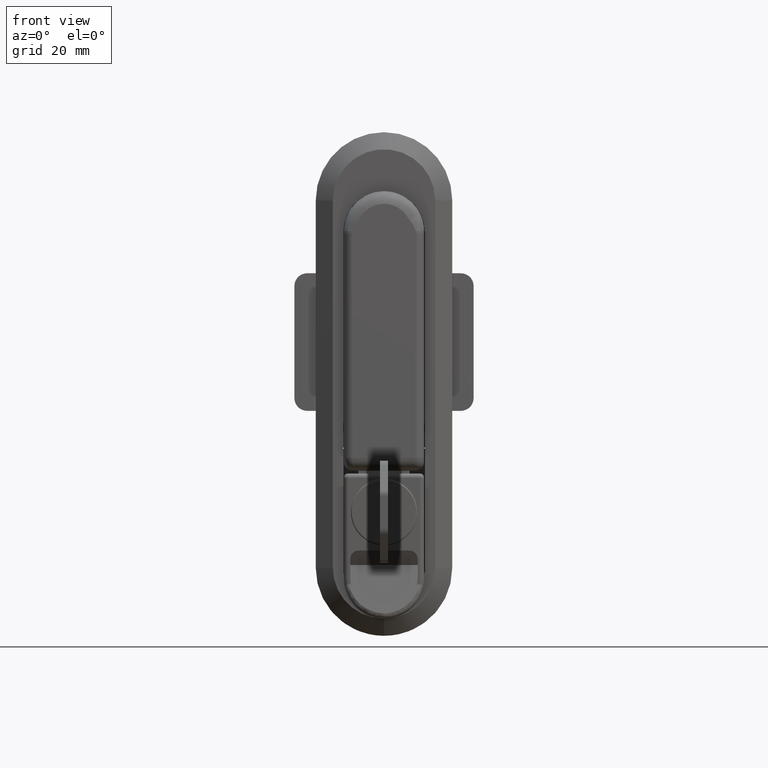
[diagram: clean part render]
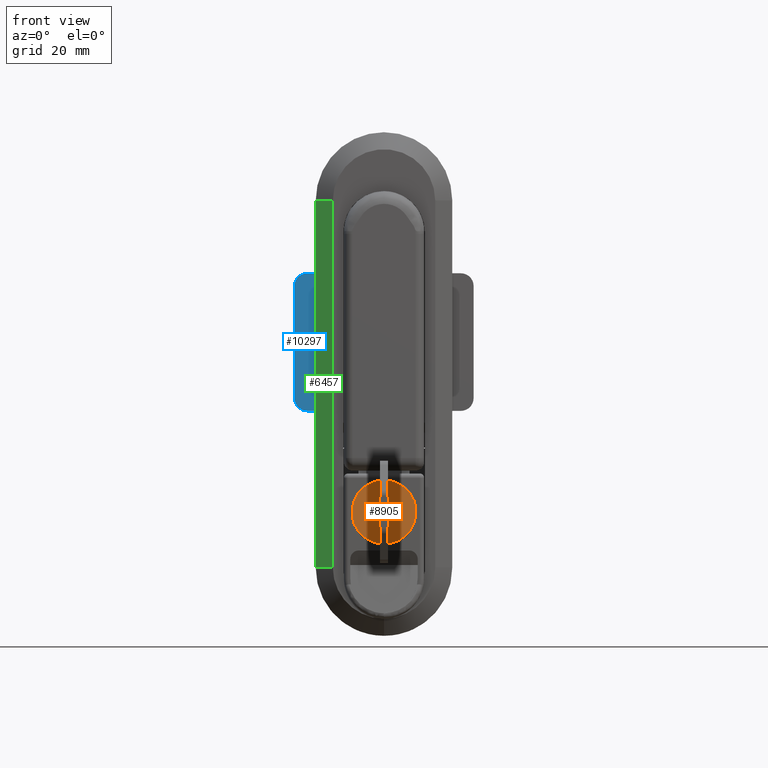
[diagram: same view with three faces highlighted in distinct colors, each labeled with its STEP entity id]
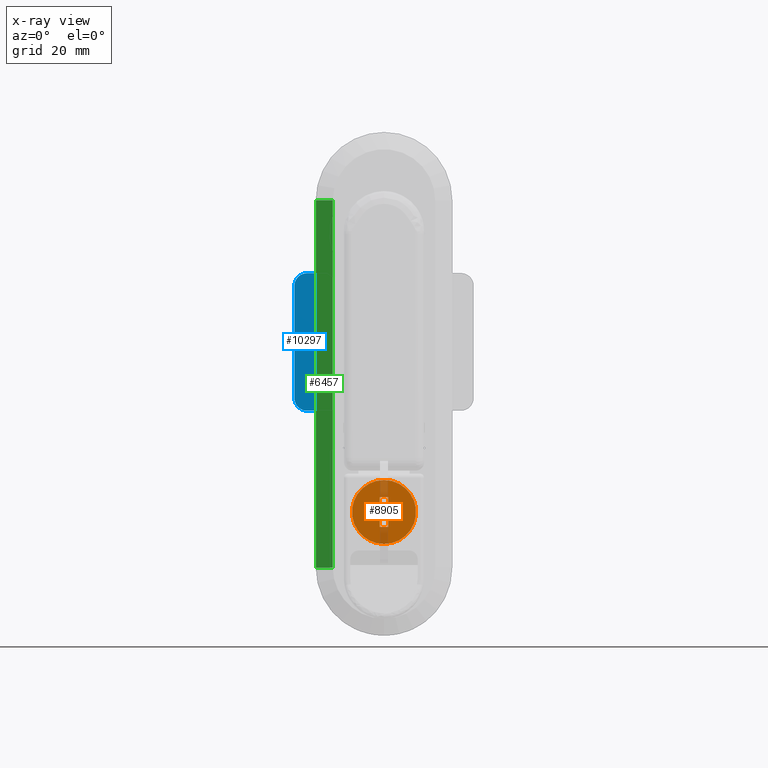
[diagram: x-ray of the same camera — body ghosted, the three highlighted faces saturated]
A machine part, front view with three faces highlighted in distinct colors.
The next image is the same camera in x-ray (body ghosted, the three faces saturated) — at least one of them is partly hidden behind the body in this view.
Their STEP definitions:

[orange] entity #8905 — the highlighted planar face has unit normal (0, 1, 0).
#2088 = CARTESIAN_POINT ( 'NONE',  ( -3.399999999999999900, 0.0000000000000000000, -72.69999999999998900 ) ) ;
#2089 = CARTESIAN_POINT ( 'NONE',  ( -3.399999999999999900, 9.368548013477254200E-016, -57.69999999999999600 ) ) ;
#2090 = DIRECTION ( 'NONE',  ( 0.0000000000000000000, 0.0000000000000000000, -1.000000000000000000 ) ) ;
#2091 = DIRECTION ( 'NONE',  ( -1.000000000000000000, 0.0000000000000000000, 0.0000000000000000000 ) ) ;
#2092 = AXIS2_PLACEMENT_3D ( 'NONE', #2098, #2091, #2090 ) ;
#2093 = CIRCLE ( 'NONE', #2092, 7.499999999999992900 ) ;
#2098 = CARTESIAN_POINT ( 'NONE',  ( -3.399999999999999900, 0.0000000000000000000, -65.19999999999998900 ) ) ;
#2594 = VECTOR ( 'NONE', #2649, 1000.000000000000000 ) ;
#2595 = CARTESIAN_POINT ( 'NONE',  ( -3.399999999999999900, 0.0000000000000000000, -61.69999999999999600 ) ) ;
#2596 = LINE ( 'NONE', #2595, #2594 ) ;
#2616 = DIRECTION ( 'NONE',  ( 0.0000000000000000000, -1.000000000000000000, 0.0000000000000000000 ) ) ;
#2617 = DIRECTION ( 'NONE',  ( 1.000000000000000000, 0.0000000000000000000, 0.0000000000000000000 ) ) ;
#2618 = CARTESIAN_POINT ( 'NONE',  ( -3.399999999999999900, 0.0000000000000000000, 0.0000000000000000000 ) ) ;
#2619 = AXIS2_PLACEMENT_3D ( 'NONE', #2618, #2617, #2616 ) ;
#2620 = PLANE ( 'NONE',  #2619 ) ;
#2622 = FACE_BOUND ( 'NONE', #8910, .T. ) ;
#2623 = FACE_OUTER_BOUND ( 'NONE', #8906, .T. ) ;
#2640 = DIRECTION ( 'NONE',  ( 0.0000000000000000000, -1.000000000000000000, 0.0000000000000000000 ) ) ;
#2641 = VECTOR ( 'NONE', #2640, 1000.000000000000000 ) ;
#2642 = CARTESIAN_POINT ( 'NONE',  ( -3.399999999999999900, 0.0000000000000000000, -68.70000000000000300 ) ) ;
#2643 = LINE ( 'NONE', #2642, #2641 ) ;
#2644 = CARTESIAN_POINT ( 'NONE',  ( -3.399999999999959900, -1.000000000000000000, -68.70000000000000300 ) ) ;
#2645 = DIRECTION ( 'NONE',  ( 0.0000000000000000000, 0.0000000000000000000, 1.000000000000000000 ) ) ;
#2646 = VECTOR ( 'NONE', #2645, 1000.000000000000000 ) ;
#2647 = CARTESIAN_POINT ( 'NONE',  ( -3.399999999999999900, -1.000000000000000000, 0.0000000000000000000 ) ) ;
#2648 = LINE ( 'NONE', #2647, #2646 ) ;
#2649 = DIRECTION ( 'NONE',  ( 0.0000000000000000000, 1.000000000000000000, 0.0000000000000000000 ) ) ;
#2670 = CARTESIAN_POINT ( 'NONE',  ( -3.399999999999959900, -1.000000000000000000, -61.69999999999999600 ) ) ;
#2671 = CARTESIAN_POINT ( 'NONE',  ( -3.399999999999999900, 1.000000000000000000, -68.70000000000000300 ) ) ;
#2672 = CARTESIAN_POINT ( 'NONE',  ( -3.399999999999959900, 1.000000000000000000, -61.69999999999999600 ) ) ;
#2673 = DIRECTION ( 'NONE',  ( 0.0000000000000000000, 0.0000000000000000000, -1.000000000000000000 ) ) ;
#2674 = VECTOR ( 'NONE', #2673, 1000.000000000000000 ) ;
#2675 = CARTESIAN_POINT ( 'NONE',  ( -3.399999999999999900, 1.000000000000000000, 0.0000000000000000000 ) ) ;
#2676 = LINE ( 'NONE', #2675, #2674 ) ;
#2677 = DIRECTION ( 'NONE',  ( 0.0000000000000000000, 0.0000000000000000000, -1.000000000000000000 ) ) ;
#2678 = DIRECTION ( 'NONE',  ( -1.000000000000000000, 0.0000000000000000000, 0.0000000000000000000 ) ) ;
#2679 = CARTESIAN_POINT ( 'NONE',  ( -3.399999999999999900, 0.0000000000000000000, -65.19999999999998900 ) ) ;
#2680 = AXIS2_PLACEMENT_3D ( 'NONE', #2679, #2678, #2677 ) ;
#2681 = CIRCLE ( 'NONE', #2680, 7.499999999999992900 ) ;
#8602 = EDGE_CURVE ( 'NONE', #8603, #8604, #2093, .T. ) ;
#8603 = VERTEX_POINT ( 'NONE', #2089 ) ;
#8604 = VERTEX_POINT ( 'NONE', #2088 ) ;
#8887 = ORIENTED_EDGE ( 'NONE', *, *, #8888, .F. ) ;
#8888 = EDGE_CURVE ( 'NONE', #8915, #8913, #2596, .T. ) ;
#8889 = ORIENTED_EDGE ( 'NONE', *, *, #8890, .F. ) ;
#8890 = EDGE_CURVE ( 'NONE', #8891, #8915, #2648, .T. ) ;
#8891 = VERTEX_POINT ( 'NONE', #2644 ) ;
#8892 = ORIENTED_EDGE ( 'NONE', *, *, #8893, .F. ) ;
#8893 = EDGE_CURVE ( 'NONE', #8914, #8891, #2643, .T. ) ;
#8905 = ADVANCED_FACE ( 'NONE', ( #2623, #2622 ), #2620, .F. ) ;
#8906 = EDGE_LOOP ( 'NONE', ( #8907, #8909 ) ) ;
#8907 = ORIENTED_EDGE ( 'NONE', *, *, #8908, .T. ) ;
#8908 = EDGE_CURVE ( 'NONE', #8604, #8603, #2681, .T. ) ;
#8909 = ORIENTED_EDGE ( 'NONE', *, *, #8602, .T. ) ;
#8910 = EDGE_LOOP ( 'NONE', ( #8911, #8887, #8889, #8892 ) ) ;
#8911 = ORIENTED_EDGE ( 'NONE', *, *, #8912, .F. ) ;
#8912 = EDGE_CURVE ( 'NONE', #8913, #8914, #2676, .T. ) ;
#8913 = VERTEX_POINT ( 'NONE', #2672 ) ;
#8914 = VERTEX_POINT ( 'NONE', #2671 ) ;
#8915 = VERTEX_POINT ( 'NONE', #2670 ) ;

[blue] entity #10297 — the highlighted planar face has unit normal (0, 1, 0).
#4950 = CARTESIAN_POINT ( 'NONE',  ( 4.999999999999920100, 21.00000000000000000, -12.25000000000000000 ) ) ;
#4951 = CARTESIAN_POINT ( 'NONE',  ( 4.999999999999920100, 21.00000000000000000, -38.50000000000000000 ) ) ;
#4952 = DIRECTION ( 'NONE',  ( 0.0000000000000000000, 0.0000000000000000000, 1.000000000000000000 ) ) ;
#4953 = VECTOR ( 'NONE', #4952, 1000.000000000000000 ) ;
#4954 = CARTESIAN_POINT ( 'NONE',  ( 4.999999999999920100, 21.00000000000000000, -1009.250000000000000 ) ) ;
#4955 = LINE ( 'NONE', #4954, #4953 ) ;
#5030 = DIRECTION ( 'NONE',  ( 0.0000000000000000000, 0.0000000000000000000, -1.000000000000000000 ) ) ;
#5031 = DIRECTION ( 'NONE',  ( -1.000000000000000000, 0.0000000000000000000, 0.0000000000000000000 ) ) ;
#5032 = CARTESIAN_POINT ( 'NONE',  ( 4.999999999999920100, 18.00000000000000000, -12.25000000000000000 ) ) ;
#5033 = AXIS2_PLACEMENT_3D ( 'NONE', #5032, #5031, #5030 ) ;
#5034 = CIRCLE ( 'NONE', #5033, 2.999999999999999100 ) ;
#5035 = DIRECTION ( 'NONE',  ( 0.0000000000000000000, 1.000000000000000000, 0.0000000000000000000 ) ) ;
#5036 = VECTOR ( 'NONE', #5035, 1000.000000000000000 ) ;
#5037 = CARTESIAN_POINT ( 'NONE',  ( 4.999999999999920100, 0.0000000000000000000, -41.50000000000000000 ) ) ;
#5038 = LINE ( 'NONE', #5037, #5036 ) ;
#5039 = CARTESIAN_POINT ( 'NONE',  ( 4.999999999999920100, 18.00000000000000000, -41.50000000000000000 ) ) ;
#5040 = DIRECTION ( 'NONE',  ( 0.0000000000000000000, 0.0000000000000000000, -1.000000000000000000 ) ) ;
#5041 = DIRECTION ( 'NONE',  ( -1.000000000000000000, 0.0000000000000000000, 0.0000000000000000000 ) ) ;
#5042 = CARTESIAN_POINT ( 'NONE',  ( 4.999999999999920100, 18.00000000000000000, -38.50000000000000000 ) ) ;
#5043 = AXIS2_PLACEMENT_3D ( 'NONE', #5042, #5041, #5040 ) ;
#5044 = CIRCLE ( 'NONE', #5043, 3.000000000000002700 ) ;
#5066 = DIRECTION ( 'NONE',  ( 0.0000000000000000000, 0.0000000000000000000, -1.000000000000000000 ) ) ;
#5067 = DIRECTION ( 'NONE',  ( 1.000000000000000000, 0.0000000000000000000, 0.0000000000000000000 ) ) ;
#5068 = CARTESIAN_POINT ( 'NONE',  ( 4.999999999999920100, 16.29999999999999700, -1009.250000000000000 ) ) ;
#5069 = AXIS2_PLACEMENT_3D ( 'NONE', #5068, #5067, #5066 ) ;
#5070 = PLANE ( 'NONE',  #5069 ) ;
#5071 = FACE_OUTER_BOUND ( 'NONE', #10214, .T. ) ;
#6296 = EDGE_CURVE ( 'NONE', #6316, #6322, #11570, .T. ) ;
#6305 = VERTEX_POINT ( 'NONE', #11550 ) ;
#6307 = EDGE_CURVE ( 'NONE', #6322, #6305, #11549, .T. ) ;
#6316 = VERTEX_POINT ( 'NONE', #11589 ) ;
#6322 = VERTEX_POINT ( 'NONE', #11638 ) ;
#10214 = EDGE_LOOP ( 'NONE', ( #10215, #10275, #10278, #10280, #10281, #10282 ) ) ;
#10215 = ORIENTED_EDGE ( 'NONE', *, *, #10216, .F. ) ;
#10216 = EDGE_CURVE ( 'NONE', #10217, #10218, #4955, .T. ) ;
#10217 = VERTEX_POINT ( 'NONE', #4951 ) ;
#10218 = VERTEX_POINT ( 'NONE', #4950 ) ;
#10275 = ORIENTED_EDGE ( 'NONE', *, *, #10276, .T. ) ;
#10276 = EDGE_CURVE ( 'NONE', #10217, #10277, #5044, .T. ) ;
#10277 = VERTEX_POINT ( 'NONE', #5039 ) ;
#10278 = ORIENTED_EDGE ( 'NONE', *, *, #10279, .F. ) ;
#10279 = EDGE_CURVE ( 'NONE', #6316, #10277, #5038, .T. ) ;
#10280 = ORIENTED_EDGE ( 'NONE', *, *, #6296, .T. ) ;
#10281 = ORIENTED_EDGE ( 'NONE', *, *, #6307, .T. ) ;
#10282 = ORIENTED_EDGE ( 'NONE', *, *, #10283, .T. ) ;
#10283 = EDGE_CURVE ( 'NONE', #6305, #10218, #5034, .T. ) ;
#10297 = ADVANCED_FACE ( 'NONE', ( #5071 ), #5070, .F. ) ;
#11549 = LINE ( 'NONE', #11612, #11611 ) ;
#11550 = CARTESIAN_POINT ( 'NONE',  ( 4.999999999999920100, 18.00000000000000000, -9.250000000000000000 ) ) ;
#11567 = DIRECTION ( 'NONE',  ( 0.0000000000000000000, 0.0000000000000000000, 1.000000000000000000 ) ) ;
#11568 = VECTOR ( 'NONE', #11567, 1000.000000000000000 ) ;
#11569 = CARTESIAN_POINT ( 'NONE',  ( 4.999999999999920100, 16.29999999999999700, -1009.250000000000000 ) ) ;
#11570 = LINE ( 'NONE', #11569, #11568 ) ;
#11589 = CARTESIAN_POINT ( 'NONE',  ( 4.999999999999920100, 16.29999999999999700, -41.50000000000000000 ) ) ;
#11610 = DIRECTION ( 'NONE',  ( 0.0000000000000000000, 1.000000000000000000, 0.0000000000000000000 ) ) ;
#11611 = VECTOR ( 'NONE', #11610, 1000.000000000000000 ) ;
#11612 = CARTESIAN_POINT ( 'NONE',  ( 4.999999999999920100, 0.0000000000000000000, -9.250000000000000000 ) ) ;
#11638 = CARTESIAN_POINT ( 'NONE',  ( 4.999999999999920100, 16.29999999999999700, -9.250000000000000000 ) ) ;

[green] entity #6457 — the highlighted planar face has unit normal (0.6, 0.8, 0).
#6429 = EDGE_LOOP ( 'NONE', ( #6430, #6433, #6436, #6438 ) ) ;
#6430 = ORIENTED_EDGE ( 'NONE', *, *, #6431, .T. ) ;
#6431 = EDGE_CURVE ( 'NONE', #6450, #6432, #11806, .T. ) ;
#6432 = VERTEX_POINT ( 'NONE', #11802 ) ;
#6433 = ORIENTED_EDGE ( 'NONE', *, *, #6434, .F. ) ;
#6434 = EDGE_CURVE ( 'NONE', #6435, #6432, #11863, .T. ) ;
#6435 = VERTEX_POINT ( 'NONE', #11859 ) ;
#6436 = ORIENTED_EDGE ( 'NONE', *, *, #6437, .F. ) ;
#6437 = EDGE_CURVE ( 'NONE', #6453, #6435, #11858, .T. ) ;
#6438 = ORIENTED_EDGE ( 'NONE', *, *, #6452, .T. ) ;
#6450 = VERTEX_POINT ( 'NONE', #11832 ) ;
#6452 = EDGE_CURVE ( 'NONE', #6453, #6450, #11894, .T. ) ;
#6453 = VERTEX_POINT ( 'NONE', #11890 ) ;
#6457 = ADVANCED_FACE ( 'NONE', ( #11889 ), #11883, .F. ) ;
#11802 = CARTESIAN_POINT ( 'NONE',  ( 3.000000000000000000, 16.00000000000000000, -78.20000000000000300 ) ) ;
#11803 = DIRECTION ( 'NONE',  ( 0.0000000000000000000, -3.227392513445214900E-016, -1.000000000000000000 ) ) ;
#11804 = VECTOR ( 'NONE', #11803, 1000.000000000000000 ) ;
#11805 = CARTESIAN_POINT ( 'NONE',  ( 3.000000000000000000, 16.00000000000000000, 7.799999999999999800 ) ) ;
#11806 = LINE ( 'NONE', #11805, #11804 ) ;
#11832 = CARTESIAN_POINT ( 'NONE',  ( 3.000000000000000000, 16.00000000000000000, 7.799999999999999800 ) ) ;
#11855 = DIRECTION ( 'NONE',  ( 0.0000000000000000000, -3.227392513445214900E-016, -1.000000000000000000 ) ) ;
#11856 = VECTOR ( 'NONE', #11855, 1000.000000000000000 ) ;
#11857 = CARTESIAN_POINT ( 'NONE',  ( 0.0000000000000000000, 12.00001488677310000, -3.872875820680263800E-015 ) ) ;
#11858 = LINE ( 'NONE', #11857, #11856 ) ;
#11859 = CARTESIAN_POINT ( 'NONE',  ( 0.0000000000000000000, 12.00001488677308000, -78.20000000000000300 ) ) ;
#11860 = DIRECTION ( 'NONE',  ( 0.6000014291326625200, 0.7999989281485084800, -2.581910551470693800E-016 ) ) ;
#11861 = VECTOR ( 'NONE', #11860, 1000.000000000000000 ) ;
#11862 = CARTESIAN_POINT ( 'NONE',  ( -4.680008003099260300, 5.760027439379779700, -78.20000000000000300 ) ) ;
#11863 = LINE ( 'NONE', #11862, #11861 ) ;
#11879 = DIRECTION ( 'NONE',  ( 0.6000014291326626300, 0.7999989281485084800, 0.0000000000000000000 ) ) ;
#11880 = DIRECTION ( 'NONE',  ( 0.7999989281485084800, -0.6000014291326626300, 1.936440120439183600E-016 ) ) ;
#11881 = CARTESIAN_POINT ( 'NONE',  ( 3.000000000000000000, 16.00000000000000000, 7.799999999999999800 ) ) ;
#11882 = AXIS2_PLACEMENT_3D ( 'NONE', #11881, #11880, #11879 ) ;
#11883 = PLANE ( 'NONE',  #11882 ) ;
#11889 = FACE_OUTER_BOUND ( 'NONE', #6429, .T. ) ;
#11890 = CARTESIAN_POINT ( 'NONE',  ( 0.0000000000000000000, 12.00001488677310000, 7.799999999999999800 ) ) ;
#11891 = DIRECTION ( 'NONE',  ( 0.6000014291326625200, 0.7999989281485084800, -2.581910551470693800E-016 ) ) ;
#11892 = VECTOR ( 'NONE', #11891, 1000.000000000000000 ) ;
#11893 = CARTESIAN_POINT ( 'NONE',  ( -4.680008003099270100, 5.760027439379810800, 7.799999999999999800 ) ) ;
#11894 = LINE ( 'NONE', #11893, #11892 ) ;